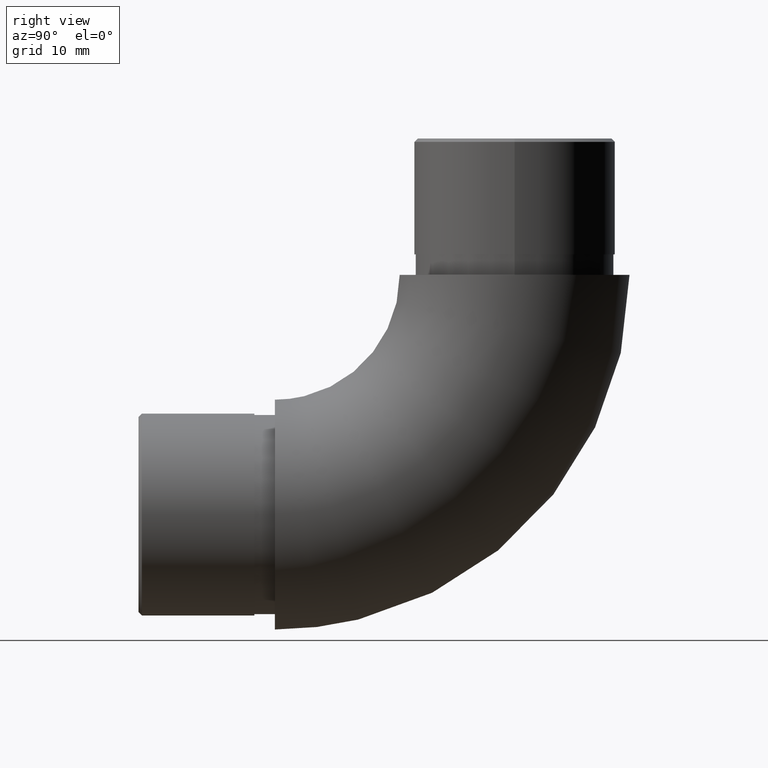
[diagram: clean part render]
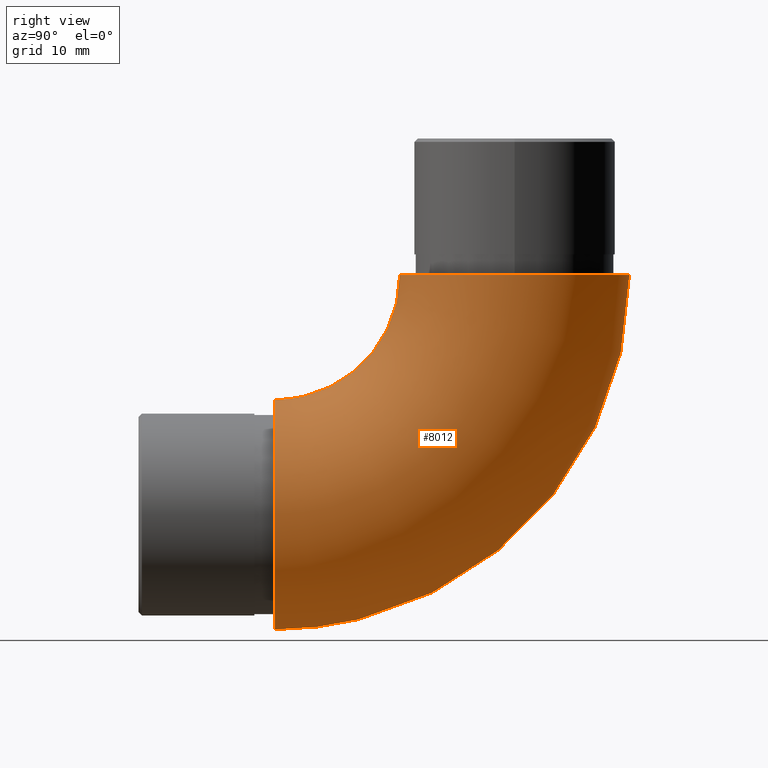
[diagram: same view with one face highlighted and labeled with its STEP entity id]
A machine part, right view. The second image highlights one B-rep face of the part: STEP entity #8012.
In plain terms, the highlighted toroidal blend (fillet) surface has major radius 35.15 mm and minor (blend) radius 16.85 mm.
Its self-contained STEP definition (entity closure, byte-faithful):
#533 = CARTESIAN_POINT ( 'NONE',  ( 0.0000000000000000000, -6.938893903907228400E-015, 52.00000000000000000 ) ) ;
#1635 = CARTESIAN_POINT ( 'NONE',  ( 0.0000000000000000000, 0.0000000000000000000, 16.85000000000000100 ) ) ;
#2668 = FACE_OUTER_BOUND ( 'NONE', #3751, .T. ) ;
#3254 = FACE_OUTER_BOUND ( 'NONE', #5580, .T. ) ;
#3429 = DIRECTION ( 'NONE',  ( -1.000000000000000000, -0.0000000000000000000, -0.0000000000000000000 ) ) ;
#3517 = AXIS2_PLACEMENT_3D ( 'NONE', #533, #3429, #11184 ) ;
#3739 = ORIENTED_EDGE ( 'NONE', *, *, #8524, .F. ) ;
#3751 = EDGE_LOOP ( 'NONE', ( #5098 ) ) ;
#4828 = AXIS2_PLACEMENT_3D ( 'NONE', #5754, #7797, #5788 ) ;
#5098 = ORIENTED_EDGE ( 'NONE', *, *, #11448, .T. ) ;
#5267 = CARTESIAN_POINT ( 'NONE',  ( 0.0000000000000000000, 0.0000000000000000000, 33.70000000000000300 ) ) ;
#5580 = EDGE_LOOP ( 'NONE', ( #3739 ) ) ;
#5754 = CARTESIAN_POINT ( 'NONE',  ( 0.0000000000000000000, 35.14999999999998400, 52.00000000000000000 ) ) ;
#5788 = DIRECTION ( 'NONE',  ( 0.0000000000000000000, -1.000000000000000000, 0.0000000000000000000 ) ) ;
#6334 = CARTESIAN_POINT ( 'NONE',  ( 0.0000000000000000000, 18.29999999999998600, 52.00000000000000000 ) ) ;
#7519 = DIRECTION ( 'NONE',  ( 0.0000000000000000000, 0.0000000000000000000, 1.000000000000000000 ) ) ;
#7797 = DIRECTION ( 'NONE',  ( 0.0000000000000000000, 6.123233995736766000E-017, 1.000000000000000000 ) ) ;
#8012 = ADVANCED_FACE ( 'NONE', ( #3254, #2668 ), #12275, .T. ) ;
#8205 = VERTEX_POINT ( 'NONE', #5267 ) ;
#8524 = EDGE_CURVE ( 'NONE', #8804, #8804, #10871, .T. ) ;
#8526 = DIRECTION ( 'NONE',  ( 0.0000000000000000000, 1.000000000000000000, 0.0000000000000000000 ) ) ;
#8804 = VERTEX_POINT ( 'NONE', #6334 ) ;
#9605 = CIRCLE ( 'NONE', #11451, 16.85000000000000100 ) ;
#10871 = CIRCLE ( 'NONE', #4828, 16.85000000000000100 ) ;
#11184 = DIRECTION ( 'NONE',  ( 0.0000000000000000000, 0.0000000000000000000, 1.000000000000000000 ) ) ;
#11448 = EDGE_CURVE ( 'NONE', #8205, #8205, #9605, .T. ) ;
#11451 = AXIS2_PLACEMENT_3D ( 'NONE', #1635, #8526, #7519 ) ;
#12275 = TOROIDAL_SURFACE ( 'NONE', #3517, 35.14999999999999100, 16.85000000000000100 ) ;